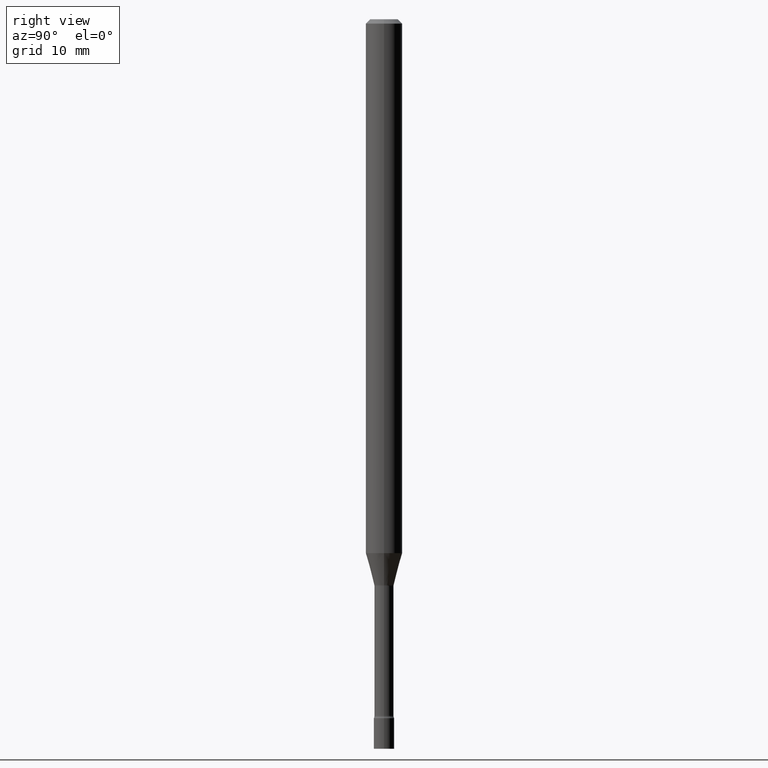
[diagram: clean part render]
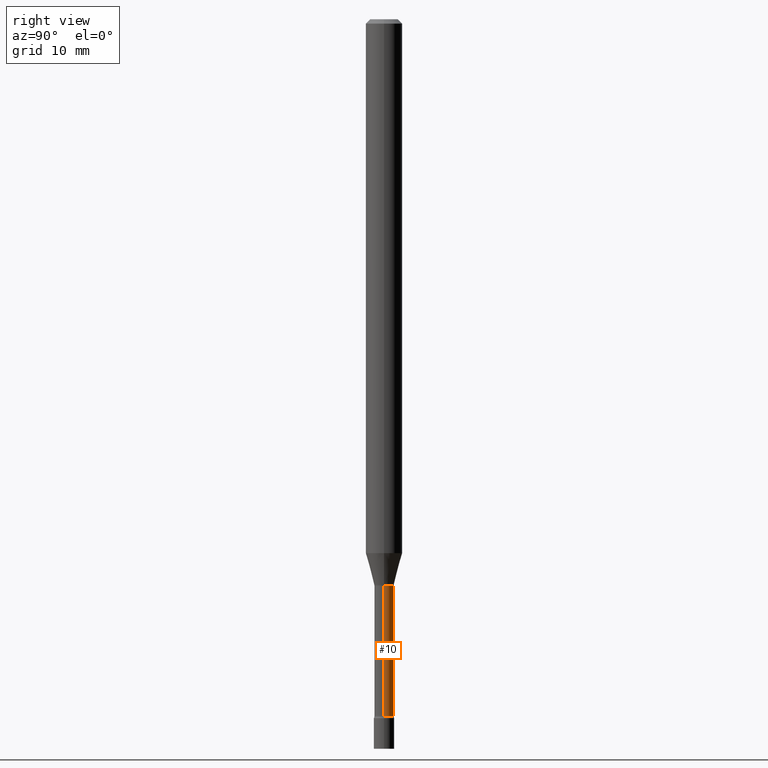
[diagram: same view with one face highlighted and labeled with its STEP entity id]
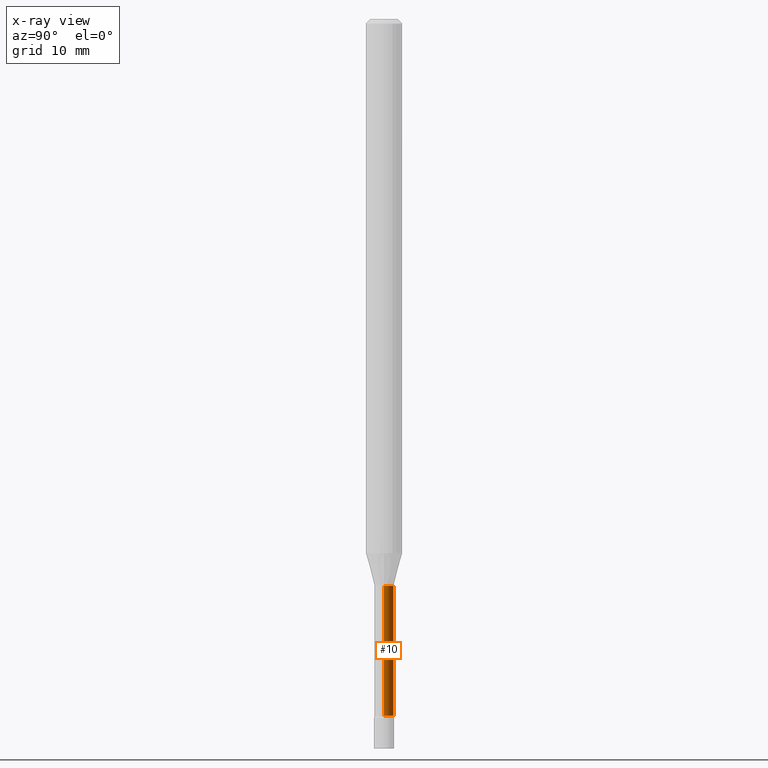
[diagram: x-ray of the same camera — body ghosted, the highlighted face saturated]
A machine part, right view. The second image highlights one B-rep face of the part: STEP entity #10.
The next image is the same camera in x-ray: the body ghosted, the highlighted face saturated — about 0% of this face is hidden behind the body in this view.
In plain terms, the highlighted cylindrical surface (edge-blend (fillet) strip) has radius 0.8357 mm, axis along (-0, 0, 1).
Its self-contained STEP definition (entity closure, byte-faithful):
#7 = LINE ( 'NONE', #327, #363 ) ;
#10 = ADVANCED_FACE ( 'NONE', ( #123 ), #55, .T. ) ;
#23 = CARTESIAN_POINT ( 'NONE',  ( 5.838179168722289395E-29, -8.335372575132116772E-15, -2.387345589506695731 ) ) ;
#29 = DIRECTION ( 'NONE',  ( -2.445468806185136597E-29, 3.491481338843145583E-15, 1.000000000000000000 ) ) ;
#38 = EDGE_LOOP ( 'NONE', ( #396, #141, #361, #226 ) ) ;
#55 = CYLINDRICAL_SURFACE ( 'NONE', #413, 0.03289999999999996400 ) ;
#81 = CARTESIAN_POINT ( 'NONE',  ( -0.03289999999999994318, -8.107505932040171616E-15, -2.387345589506695731 ) ) ;
#84 = AXIS2_PLACEMENT_3D ( 'NONE', #511, #160, #323 ) ;
#86 = DIRECTION ( 'NONE',  ( 1.000000000000000000, -6.982962677686267499E-15, 4.876176775795936353E-29 ) ) ;
#110 = CARTESIAN_POINT ( 'NONE',  ( 0.03289999999999999175, -7.010108203029657542E-15, -1.941974787463811136 ) ) ;
#123 = FACE_OUTER_BOUND ( 'NONE', #38, .T. ) ;
#141 = ORIENTED_EDGE ( 'NONE', *, *, #150, .T. ) ;
#149 = CARTESIAN_POINT ( 'NONE',  ( -0.03289999999999996400, 2.337685600650727053E-16, -1.618329644693862428E-30 ) ) ;
#150 = EDGE_CURVE ( 'NONE', #240, #483, #261, .T. ) ;
#160 = DIRECTION ( 'NONE',  ( -2.445468806185136597E-29, 3.491481338843145583E-15, 1.000000000000000000 ) ) ;
#178 = CIRCLE ( 'NONE', #84, 0.03289999999999999175 ) ;
#179 = VERTEX_POINT ( 'NONE', #307 ) ;
#211 = CARTESIAN_POINT ( 'NONE',  ( 0.000000000000000000, 0.000000000000000000, 0.000000000000000000 ) ) ;
#226 = ORIENTED_EDGE ( 'NONE', *, *, #262, .F. ) ;
#227 = DIRECTION ( 'NONE',  ( -2.445468806185136877E-29, 3.491481338843145188E-15, 1.000000000000000000 ) ) ;
#231 = CARTESIAN_POINT ( 'NONE',  ( -0.03289999999999999869, -7.324102092967875030E-15, -1.941974787463811136 ) ) ;
#240 = VERTEX_POINT ( 'NONE', #81 ) ;
#243 = VERTEX_POINT ( 'NONE', #110 ) ;
#252 = VECTOR ( 'NONE', #227, 39.37007874015748143 ) ;
#261 = LINE ( 'NONE', #149, #252 ) ;
#262 = EDGE_CURVE ( 'NONE', #179, #243, #7, .T. ) ;
#277 = DIRECTION ( 'NONE',  ( -2.445468806185136877E-29, 3.491481338843145188E-15, 1.000000000000000000 ) ) ;
#307 = CARTESIAN_POINT ( 'NONE',  ( 0.03289999999999994318, -8.565112047227994531E-15, -2.387345589506695731 ) ) ;
#323 = DIRECTION ( 'NONE',  ( 1.000000000000000000, -6.982962677686254089E-15, 0.000000000000000000 ) ) ;
#327 = CARTESIAN_POINT ( 'NONE',  ( 0.03289999999999996400, -2.297394720958779555E-16, 1.604262159236861304E-30 ) ) ;
#342 = DIRECTION ( 'NONE',  ( 1.000000000000000000, -6.982962677686264344E-15, 0.000000000000000000 ) ) ;
#361 = ORIENTED_EDGE ( 'NONE', *, *, #427, .F. ) ;
#363 = VECTOR ( 'NONE', #277, 39.37007874015748143 ) ;
#374 = EDGE_CURVE ( 'NONE', #179, #240, #415, .T. ) ;
#396 = ORIENTED_EDGE ( 'NONE', *, *, #374, .T. ) ;
#413 = AXIS2_PLACEMENT_3D ( 'NONE', #211, #456, #86 ) ;
#415 = CIRCLE ( 'NONE', #487, 0.03289999999999994318 ) ;
#427 = EDGE_CURVE ( 'NONE', #243, #483, #178, .T. ) ;
#456 = DIRECTION ( 'NONE',  ( -2.445468806185136597E-29, 3.491481338843145583E-15, 1.000000000000000000 ) ) ;
#483 = VERTEX_POINT ( 'NONE', #231 ) ;
#487 = AXIS2_PLACEMENT_3D ( 'NONE', #23, #29, #342 ) ;
#511 = CARTESIAN_POINT ( 'NONE',  ( 4.749038765140760416E-29, -6.780368730933779783E-15, -1.941974787463811136 ) ) ;